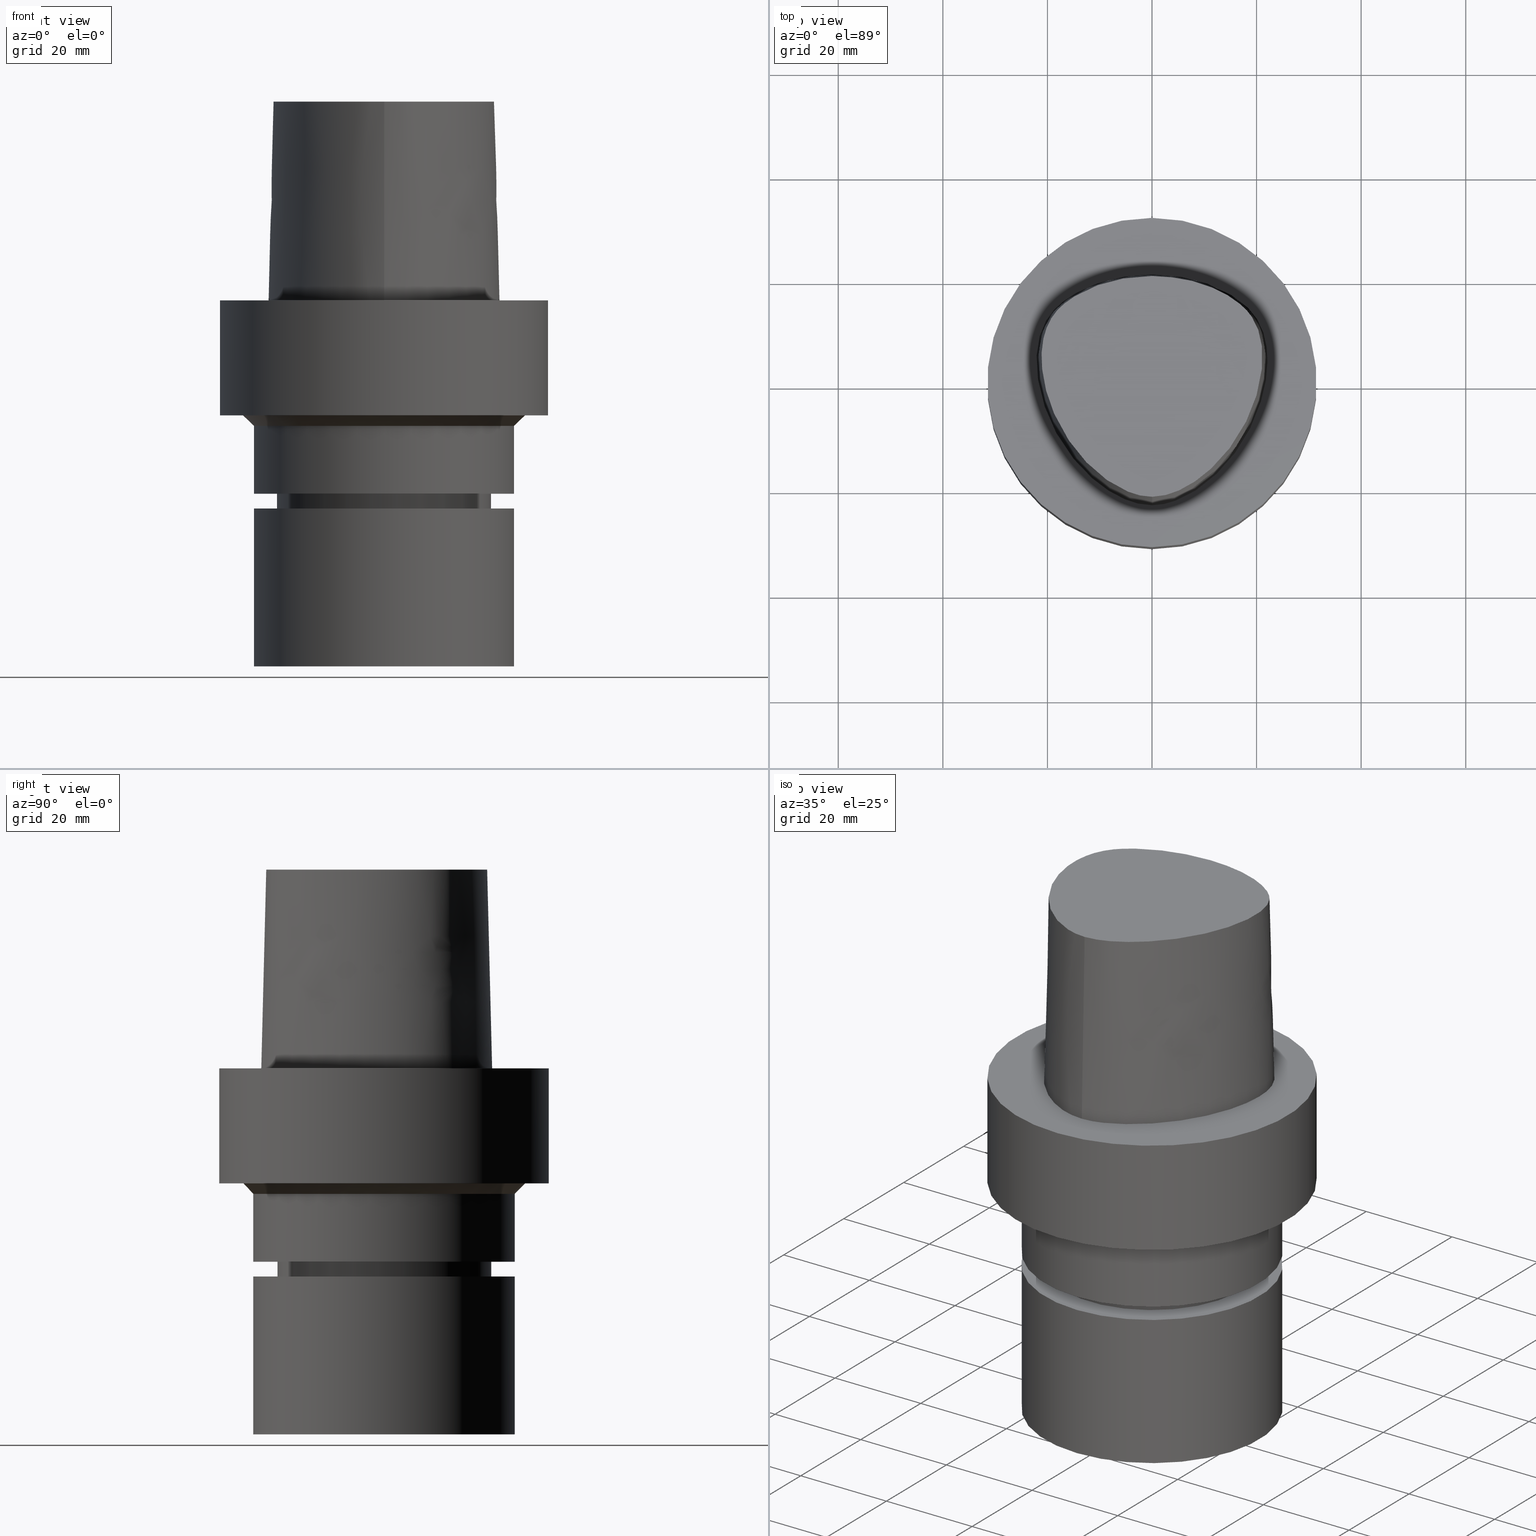
[diagram: canonical four-view strip — front | top / right | iso, engineering-drawing reading convention]
A machine part, canonical four-view strip (front | top / right | iso — engineering-drawing reading convention). The complete STEP part file that produces these views, byte-faithful:
ISO-10303-21;
HEADER;
FILE_DESCRIPTION((''),'1');
FILE_NAME('V:/90_\X2\53D65F9730C730FC30BF\X0\/00_\X2\6DE18DEF30C730FC30BF\X0\/ALL/CAPTO-BKUS\X2\52A05DE556F3\X0\_201801/C6-MEGAER/C6-MEGAER32-70NL.stp','2018-02-01T08:46:27',(''),(''),'Spatial Interop R21 SP3','Kubotek KeyCreator 2011 V10.0.2 (22737)',' ');
FILE_SCHEMA(('automotive_design'));
ENDSEC;
DATA;
#1=MECHANICAL_DESIGN_GEOMETRIC_PRESENTATION_REPRESENTATION(' ',(#14,#15,#16,#17,#18,#19,#20,#21,#22,#23,#24,#25,#26,#27,#28,#29,#30,#31,#32,#33,#34,#35,#36,#37,#38,#39,#40,#41,#42,#43,#44,#45,#46,#47,#48,#49,#50,#51,#52,#53),#10);
#2=PRODUCT_DEFINITION_CONTEXT('',#54,'design');
#3=APPLICATION_PROTOCOL_DEFINITION('INTERNATIONAL STANDARD','automotive_design',1994,#54);
#4=PRODUCT_CATEGORY_RELATIONSHIP('NONE','NONE',#55,#56);
#5=SHAPE_DEFINITION_REPRESENTATION(#57,#58);
#6=PRODUCT_DEFINITION_CONTEXT('',#59,'design');
#7=APPLICATION_PROTOCOL_DEFINITION('INTERNATIONAL STANDARD','automotive_design',1994,#59);
#8=PRODUCT_CATEGORY_RELATIONSHIP('NONE','NONE',#60,#61);
#9=SHAPE_DEFINITION_REPRESENTATION(#62,#63);
#10= (GEOMETRIC_REPRESENTATION_CONTEXT(3)GLOBAL_UNCERTAINTY_ASSIGNED_CONTEXT((#66))GLOBAL_UNIT_ASSIGNED_CONTEXT((#68,#69,#70))REPRESENTATION_CONTEXT('NONE','WORKSPACE'));
#14=STYLED_ITEM('',(#72),#73);
#15=STYLED_ITEM('',(#74),#75);
#16=STYLED_ITEM('',(#76,#77),#78);
#17=STYLED_ITEM('',(#79,#80),#81);
#18=STYLED_ITEM('',(#82,#83),#84);
#19=STYLED_ITEM('',(#85),#86);
#20=STYLED_ITEM('',(#87),#88);
#21=STYLED_ITEM('',(#89),#90);
#22=STYLED_ITEM('',(#91,#92),#93);
#23=STYLED_ITEM('',(#94),#95);
#24=STYLED_ITEM('',(#96,#97),#98);
#25=STYLED_ITEM('',(#99,#100),#101);
#26=STYLED_ITEM('',(#102),#103);
#27=STYLED_ITEM('',(#104),#105);
#28=STYLED_ITEM('',(#106,#107),#108);
#29=STYLED_ITEM('',(#109,#110),#111);
#30=STYLED_ITEM('',(#112,#113),#114);
#31=STYLED_ITEM('',(#115,#116),#117);
#32=STYLED_ITEM('',(#118,#119),#120);
#33=STYLED_ITEM('',(#121),#122);
#34=STYLED_ITEM('',(#123),#124);
#35=STYLED_ITEM('',(#125,#126),#127);
#36=STYLED_ITEM('',(#128),#129);
#37=STYLED_ITEM('',(#130),#131);
#38=STYLED_ITEM('',(#132),#133);
#39=STYLED_ITEM('',(#134,#135),#136);
#40=STYLED_ITEM('',(#137),#138);
#41=STYLED_ITEM('',(#139,#140),#141);
#42=STYLED_ITEM('',(#142),#143);
#43=STYLED_ITEM('',(#144,#145),#146);
#44=STYLED_ITEM('',(#147),#148);
#45=STYLED_ITEM('',(#149),#150);
#46=STYLED_ITEM('',(#151,#152),#153);
#47=STYLED_ITEM('',(#154),#155);
#48=STYLED_ITEM('',(#156,#157),#158);
#49=STYLED_ITEM('',(#159,#160),#161);
#50=STYLED_ITEM('',(#162,#163),#164);
#51=STYLED_ITEM('',(#165),#166);
#52=STYLED_ITEM('',(#167,#168),#169);
#53=STYLED_ITEM('',(#170),#171);
#54=APPLICATION_CONTEXT(' ');
#55=PRODUCT_CATEGORY('part','NONE');
#56=PRODUCT_RELATED_PRODUCT_CATEGORY('detail',' ',(#172));
#57=PRODUCT_DEFINITION_SHAPE('NONE','NONE',#173);
#58=ADVANCED_BREP_SHAPE_REPRESENTATION('Unnamed[1]',(#169,#174),#10);
#59=APPLICATION_CONTEXT(' ');
#60=PRODUCT_CATEGORY('part','NONE');
#61=PRODUCT_RELATED_PRODUCT_CATEGORY('detail',' ',(#175));
#62=PRODUCT_DEFINITION_SHAPE('NONE','NONE',#176);
#63=ADVANCED_BREP_SHAPE_REPRESENTATION('Unnamed[1]',(#98,#177),#10);
#66=UNCERTAINTY_MEASURE_WITH_UNIT(LENGTH_MEASURE(1.0E-006),#68,'','');
#68= (CONVERSION_BASED_UNIT('MILLIMETRE',#180)LENGTH_UNIT()NAMED_UNIT(#183));
#69= (NAMED_UNIT(#185)PLANE_ANGLE_UNIT()SI_UNIT($,.RADIAN.));
#70= (NAMED_UNIT(#185)SOLID_ANGLE_UNIT()SI_UNIT($,.STERADIAN.));
#72=PRESENTATION_STYLE_ASSIGNMENT((#191));
#73=EDGE_CURVE('Unnamed[1]',#192,#192,#193,.T.);
#74=PRESENTATION_STYLE_ASSIGNMENT((#194));
#75=EDGE_CURVE('Unnamed[1]',#195,#195,#196,.T.);
#76=PRESENTATION_STYLE_ASSIGNMENT((#197));
#77=PRESENTATION_STYLE_ASSIGNMENT((#198));
#78=ADVANCED_FACE('Unnamed[1]',(#199,#200),#201,.T.);
#79=PRESENTATION_STYLE_ASSIGNMENT((#202));
#80=PRESENTATION_STYLE_ASSIGNMENT((#203));
#81=ADVANCED_FACE('Unnamed[1]',(#204),#205,.T.);
#82=PRESENTATION_STYLE_ASSIGNMENT((#206));
#83=PRESENTATION_STYLE_ASSIGNMENT((#207));
#84=ADVANCED_FACE('Unnamed[1]',(#208,#209),#210,.T.);
#85=PRESENTATION_STYLE_ASSIGNMENT((#211));
#86=EDGE_CURVE('Unnamed[1]',#212,#213,#214,.T.);
#87=PRESENTATION_STYLE_ASSIGNMENT((#215));
#88=EDGE_CURVE('Unnamed[1]',#216,#216,#217,.T.);
#89=PRESENTATION_STYLE_ASSIGNMENT((#218));
#90=EDGE_CURVE('Unnamed[1]',#219,#219,#220,.T.);
#91=PRESENTATION_STYLE_ASSIGNMENT((#221));
#92=PRESENTATION_STYLE_ASSIGNMENT((#222));
#93=ADVANCED_FACE('Unnamed[1]',(#223),#224,.T.);
#94=PRESENTATION_STYLE_ASSIGNMENT((#225));
#95=EDGE_CURVE('Unnamed[1]',#226,#226,#227,.T.);
#96=PRESENTATION_STYLE_ASSIGNMENT((#228));
#97=PRESENTATION_STYLE_ASSIGNMENT((#229));
#98=MANIFOLD_SOLID_BREP('Unnamed[1]',#230);
#99=PRESENTATION_STYLE_ASSIGNMENT((#231));
#100=PRESENTATION_STYLE_ASSIGNMENT((#232));
#101=ADVANCED_FACE('Unnamed[1]',(#233,#234),#235,.T.);
#102=PRESENTATION_STYLE_ASSIGNMENT((#236));
#103=EDGE_CURVE('Unnamed[1]',#237,#212,#238,.T.);
#104=PRESENTATION_STYLE_ASSIGNMENT((#239));
#105=EDGE_CURVE('Unnamed[1]',#240,#213,#241,.T.);
#106=PRESENTATION_STYLE_ASSIGNMENT((#242));
#107=PRESENTATION_STYLE_ASSIGNMENT((#243));
#108=ADVANCED_FACE('Unnamed[1]',(#244,#245),#246,.T.);
#109=PRESENTATION_STYLE_ASSIGNMENT((#247));
#110=PRESENTATION_STYLE_ASSIGNMENT((#248));
#111=ADVANCED_FACE('Unnamed[1]',(#249),#250,.T.);
#112=PRESENTATION_STYLE_ASSIGNMENT((#251));
#113=PRESENTATION_STYLE_ASSIGNMENT((#252));
#114=ADVANCED_FACE('Unnamed[1]',(#253,#254),#255,.T.);
#115=PRESENTATION_STYLE_ASSIGNMENT((#256));
#116=PRESENTATION_STYLE_ASSIGNMENT((#257));
#117=ADVANCED_FACE('Unnamed[1]',(#258),#259,.T.);
#118=PRESENTATION_STYLE_ASSIGNMENT((#260));
#119=PRESENTATION_STYLE_ASSIGNMENT((#261));
#120=ADVANCED_FACE('Unnamed[1]',(#262,#263),#264,.T.);
#121=PRESENTATION_STYLE_ASSIGNMENT((#265));
#122=EDGE_CURVE('Unnamed[1]',#240,#237,#266,.T.);
#123=PRESENTATION_STYLE_ASSIGNMENT((#267));
#124=EDGE_CURVE('Unnamed[1]',#268,#268,#269,.T.);
#125=PRESENTATION_STYLE_ASSIGNMENT((#270));
#126=PRESENTATION_STYLE_ASSIGNMENT((#271));
#127=ADVANCED_FACE('Unnamed[1]',(#272),#273,.T.);
#128=PRESENTATION_STYLE_ASSIGNMENT((#274));
#129=EDGE_CURVE('Unnamed[1]',#275,#212,#276,.T.);
#130=PRESENTATION_STYLE_ASSIGNMENT((#277));
#131=EDGE_CURVE('Unnamed[1]',#278,#278,#279,.T.);
#132=PRESENTATION_STYLE_ASSIGNMENT((#280));
#133=EDGE_CURVE('Unnamed[1]',#281,#281,#282,.T.);
#134=PRESENTATION_STYLE_ASSIGNMENT((#283));
#135=PRESENTATION_STYLE_ASSIGNMENT((#284));
#136=ADVANCED_FACE('Unnamed[1]',(#285),#286,.T.);
#137=PRESENTATION_STYLE_ASSIGNMENT((#287));
#138=EDGE_CURVE('Unnamed[1]',#240,#275,#288,.T.);
#139=PRESENTATION_STYLE_ASSIGNMENT((#289));
#140=PRESENTATION_STYLE_ASSIGNMENT((#290));
#141=ADVANCED_FACE('Unnamed[1]',(#291,#292),#293,.T.);
#142=PRESENTATION_STYLE_ASSIGNMENT((#294));
#143=EDGE_CURVE('Unnamed[1]',#295,#295,#296,.T.);
#144=PRESENTATION_STYLE_ASSIGNMENT((#297));
#145=PRESENTATION_STYLE_ASSIGNMENT((#298));
#146=ADVANCED_FACE('Unnamed[1]',(#299),#300,.T.);
#147=PRESENTATION_STYLE_ASSIGNMENT((#301));
#148=EDGE_CURVE('Unnamed[1]',#302,#302,#303,.T.);
#149=PRESENTATION_STYLE_ASSIGNMENT((#304));
#150=EDGE_CURVE('Unnamed[1]',#305,#305,#306,.T.);
#151=PRESENTATION_STYLE_ASSIGNMENT((#307));
#152=PRESENTATION_STYLE_ASSIGNMENT((#308));
#153=ADVANCED_FACE('Unnamed[1]',(#309,#310),#311,.T.);
#154=PRESENTATION_STYLE_ASSIGNMENT((#312));
#155=EDGE_CURVE('Unnamed[1]',#237,#240,#313,.T.);
#156=PRESENTATION_STYLE_ASSIGNMENT((#314));
#157=PRESENTATION_STYLE_ASSIGNMENT((#315));
#158=ADVANCED_FACE('Unnamed[1]',(#316,#317),#318,.T.);
#159=PRESENTATION_STYLE_ASSIGNMENT((#319));
#160=PRESENTATION_STYLE_ASSIGNMENT((#320));
#161=ADVANCED_FACE('Unnamed[1]',(#321,#322),#323,.T.);
#162=PRESENTATION_STYLE_ASSIGNMENT((#324));
#163=PRESENTATION_STYLE_ASSIGNMENT((#325));
#164=ADVANCED_FACE('Unnamed[1]',(#326,#327),#328,.T.);
#165=PRESENTATION_STYLE_ASSIGNMENT((#329));
#166=EDGE_CURVE('Unnamed[1]',#330,#330,#331,.T.);
#167=PRESENTATION_STYLE_ASSIGNMENT((#332));
#168=PRESENTATION_STYLE_ASSIGNMENT((#333));
#169=MANIFOLD_SOLID_BREP('Unnamed[1]',#334);
#170=PRESENTATION_STYLE_ASSIGNMENT((#335));
#171=EDGE_CURVE('Unnamed[1]',#213,#275,#336,.T.);
#172=PRODUCT('Unnamed[1]','Unnamed[1]','PART-Unnamed[1]-DESC',(#337));
#173=PRODUCT_DEFINITION('NONE','NONE',#338,#2);
#174=AXIS2_PLACEMENT_3D('',#339,#340,#341);
#175=PRODUCT('Unnamed[1]','Unnamed[1]','PART-Unnamed[1]-DESC',(#342));
#176=PRODUCT_DEFINITION('NONE','NONE',#343,#6);
#177=AXIS2_PLACEMENT_3D('',#344,#345,#346);
#180=LENGTH_MEASURE_WITH_UNIT(LENGTH_MEASURE(1.0),#347);
#183=DIMENSIONAL_EXPONENTS(1.0,0.0,0.0,0.0,0.0,0.0,0.0);
#185=DIMENSIONAL_EXPONENTS(0.0,0.0,0.0,0.0,0.0,0.0,0.0);
#191=CURVE_STYLE('',#348,POSITIVE_LENGTH_MEASURE(1000.0),#349);
#192=VERTEX_POINT('',#350);
#193=CIRCLE('',#351,25.0);
#194=CURVE_STYLE('',#352,POSITIVE_LENGTH_MEASURE(1000.0),#353);
#195=VERTEX_POINT('',#354);
#196=CIRCLE('',#355,25.0);
#197=SURFACE_STYLE_USAGE(.BOTH.,#356);
#198=CURVE_STYLE('',#357,POSITIVE_LENGTH_MEASURE(1000.0),#358);
#199=FACE_BOUND('',#359,.T.);
#200=FACE_OUTER_BOUND('',#360,.T.);
#201=PLANE('',#361);
#202=SURFACE_STYLE_USAGE(.BOTH.,#362);
#203=CURVE_STYLE('',#363,POSITIVE_LENGTH_MEASURE(1000.0),#364);
#204=FACE_OUTER_BOUND('',#365,.T.);
#205=PLANE('',#366);
#206=SURFACE_STYLE_USAGE(.BOTH.,#367);
#207=CURVE_STYLE('',#368,POSITIVE_LENGTH_MEASURE(1000.0),#369);
#208=FACE_BOUND('',#370,.T.);
#209=FACE_BOUND('',#371,.T.);
#210=CYLINDRICAL_SURFACE('',#372,25.0);
#211=CURVE_STYLE('',#373,POSITIVE_LENGTH_MEASURE(1000.0),#374);
#212=VERTEX_POINT('',#375);
#213=VERTEX_POINT('',#376);
#214=B_SPLINE_CURVE_WITH_KNOTS('',3,(#377,#378,#379,#380,#381,#382,#383,#384,#385,#386,#387,#388,#389,#390,#391,#392,#393,#394),.UNSPECIFIED.,.F.,.F.,(4,1,1,1,1,1,1,1,1,2,1,1,1,1,4),(-6.6151339308743,-6.20168806019465,-5.78824218951501,-5.37479631883537,-4.96135044815572,-4.13445870679644,-3.30756696543715,-2.89412109475751,-2.48067522407786,-2.06722935339822,-1.65378348271857,-1.24033761203893,-0.826891741359287,-0.413445870679644,0.0),.UNSPECIFIED.);
#215=CURVE_STYLE('',#395,POSITIVE_LENGTH_MEASURE(1000.0),#396);
#216=VERTEX_POINT('',#397);
#217=CIRCLE('',#398,31.5);
#218=CURVE_STYLE('',#399,POSITIVE_LENGTH_MEASURE(1000.0),#400);
#219=VERTEX_POINT('',#401);
#220=CIRCLE('',#402,20.0);
#221=SURFACE_STYLE_USAGE(.BOTH.,#403);
#222=CURVE_STYLE('',#404,POSITIVE_LENGTH_MEASURE(1000.0),#405);
#223=FACE_OUTER_BOUND('',#406,.T.);
#224=B_SPLINE_SURFACE_WITH_KNOTS('',3,3,((#407,#408,#409,#410),(#411,#412,#413,#414),(#415,#416,#417,#418),(#419,#420,#421,#422),(#423,#424,#425,#426),(#427,#428,#429,#430),(#431,#432,#433,#434),(#435,#436,#437,#438),(#439,#440,#441,#442),(#443,#444,#445,#446),(#447,#448,#449,#450),(#451,#452,#453,#454),(#455,#456,#457,#458),(#459,#460,#461,#462),(#463,#464,#465,#466),(#467,#468,#469,#470),(#471,#472,#473,#474),(#475,#476,#477,#478)),.UNSPECIFIED.,.F.,.F.,.F.,(4,1,1,1,1,1,1,1,1,2,1,1,1,1,4),(4,4),(-6.6151339308743,-6.20168806019465,-5.78824218951501,-5.37479631883537,-4.96135044815572,-4.13445870679644,-3.30756696543715,-2.89412109475751,-2.48067522407786,-2.06722935339822,-1.65378348271857,-1.24033761203893,-0.826891741359287,-0.413445870679644,0.0),(-3.8,0.0),.UNSPECIFIED.);
#225=CURVE_STYLE('',#479,POSITIVE_LENGTH_MEASURE(1000.0),#480);
#226=VERTEX_POINT('',#481);
#227=CIRCLE('',#482,25.0);
#228=SURFACE_STYLE_USAGE(.BOTH.,#483);
#229=CURVE_STYLE('',#484,POSITIVE_LENGTH_MEASURE(1000.0),#485);
#230=CLOSED_SHELL('',(#146,#136,#84));
#231=SURFACE_STYLE_USAGE(.BOTH.,#486);
#232=CURVE_STYLE('',#487,POSITIVE_LENGTH_MEASURE(1000.0),#488);
#233=FACE_BOUND('',#489,.T.);
#234=FACE_BOUND('',#490,.T.);
#235=CONICAL_SURFACE('',#491,19.4499999999999,0.523598775598219);
#236=CURVE_STYLE('',#492,POSITIVE_LENGTH_MEASURE(1000.0),#493);
#237=VERTEX_POINT('',#494);
#238=LINE('',#495,#496);
#239=CURVE_STYLE('',#497,POSITIVE_LENGTH_MEASURE(1000.0),#498);
#240=VERTEX_POINT('',#499);
#241=LINE('',#500,#501);
#242=SURFACE_STYLE_USAGE(.BOTH.,#502);
#243=CURVE_STYLE('',#503,POSITIVE_LENGTH_MEASURE(1000.0),#504);
#244=FACE_BOUND('',#505,.T.);
#245=FACE_BOUND('',#506,.T.);
#246=CYLINDRICAL_SURFACE('',#507,20.4999999999961);
#247=SURFACE_STYLE_USAGE(.BOTH.,#508);
#248=CURVE_STYLE('',#509,POSITIVE_LENGTH_MEASURE(1000.0),#510);
#249=FACE_OUTER_BOUND('',#511,.T.);
#250=PLANE('',#512);
#251=SURFACE_STYLE_USAGE(.BOTH.,#513);
#252=CURVE_STYLE('',#514,POSITIVE_LENGTH_MEASURE(1000.0),#515);
#253=FACE_BOUND('',#516,.T.);
#254=FACE_BOUND('',#517,.T.);
#255=CONICAL_SURFACE('',#518,26.0,0.785398163397585);
#256=SURFACE_STYLE_USAGE(.BOTH.,#519);
#257=CURVE_STYLE('',#520,POSITIVE_LENGTH_MEASURE(1000.0),#521);
#258=FACE_OUTER_BOUND('',#522,.T.);
#259=CONICAL_SURFACE('',#523,1.0,0.0249931148600041);
#260=SURFACE_STYLE_USAGE(.BOTH.,#524);
#261=CURVE_STYLE('',#525,POSITIVE_LENGTH_MEASURE(1000.0),#526);
#262=FACE_BOUND('',#527,.T.);
#263=FACE_BOUND('',#528,.T.);
#264=CYLINDRICAL_SURFACE('',#529,20.0);
#265=CURVE_STYLE('',#530,POSITIVE_LENGTH_MEASURE(1000.0),#531);
#266=B_SPLINE_CURVE_WITH_KNOTS('',3,(#532,#533,#534,#535,#536,#537,#538,#539,#540,#541,#542,#543,#544,#545,#546,#547),.UNSPECIFIED.,.F.,.F.,(4,1,1,1,1,1,1,1,1,1,1,1,1,4),(0.0,0.447924670568964,0.9388024242536,1.50591409090711,2.07314340012323,2.72424957442464,3.2253501842849,3.80982102049476,4.34867996267067,4.85900173381144,5.37972031856977,6.03459825488646,6.61113557741484,6.61513393087395),.UNSPECIFIED.);
#267=CURVE_STYLE('',#548,POSITIVE_LENGTH_MEASURE(1000.0),#549);
#268=VERTEX_POINT('',#550);
#269=CIRCLE('',#551,20.0000000000001);
#270=SURFACE_STYLE_USAGE(.BOTH.,#552);
#271=CURVE_STYLE('',#553,POSITIVE_LENGTH_MEASURE(1000.0),#554);
#272=FACE_OUTER_BOUND('',#555,.T.);
#273=B_SPLINE_SURFACE_WITH_KNOTS('',3,3,((#556,#557,#558,#559),(#560,#561,#562,#563),(#564,#565,#566,#567),(#568,#569,#570,#571),(#572,#573,#574,#575),(#576,#577,#578,#579),(#580,#581,#582,#583),(#584,#585,#586,#587),(#588,#589,#590,#591),(#592,#593,#594,#595),(#596,#597,#598,#599),(#600,#601,#602,#603),(#604,#605,#606,#607),(#608,#609,#610,#611),(#612,#613,#614,#615),(#616,#617,#618,#619),(#620,#621,#622,#623)),.UNSPECIFIED.,.F.,.F.,.F.,(4,1,1,1,1,1,1,1,1,1,1,1,1,1,4),(4,4),(-13.2302678617486,-12.816821991069,-12.4033761203893,-11.9899302497097,-11.57648437903,-11.1630385083504,-10.9563155730106,-10.7495926376707,-10.3361467669911,-9.92270089631145,-9.09580915495216,-8.26891741359287,-7.44202567223358,-7.02857980155394,-6.6151339308743),(-3.8,0.0),.UNSPECIFIED.);
#274=CURVE_STYLE('',#624,POSITIVE_LENGTH_MEASURE(1000.0),#625);
#275=VERTEX_POINT('',#626);
#276=B_SPLINE_CURVE_WITH_KNOTS('',3,(#627,#628,#629,#630,#631,#632,#633,#634,#635,#636,#637,#638,#639,#640,#641,#642,#643),.UNSPECIFIED.,.F.,.F.,(4,1,1,1,1,1,1,1,1,1,1,1,1,1,4),(-13.2302678617486,-12.816821991069,-12.4033761203893,-11.9899302497097,-11.57648437903,-11.1630385083504,-10.9563155730106,-10.7495926376707,-10.3361467669911,-9.92270089631145,-9.09580915495216,-8.26891741359287,-7.44202567223358,-7.02857980155394,-6.6151339308743),.UNSPECIFIED.);
#277=CURVE_STYLE('',#644,POSITIVE_LENGTH_MEASURE(1000.0),#645);
#278=VERTEX_POINT('',#646);
#279=CIRCLE('',#647,31.5);
#280=CURVE_STYLE('',#648,POSITIVE_LENGTH_MEASURE(1000.0),#649);
#281=VERTEX_POINT('',#650);
#282=CIRCLE('',#651,25.0);
#283=SURFACE_STYLE_USAGE(.BOTH.,#652);
#284=CURVE_STYLE('',#653,POSITIVE_LENGTH_MEASURE(1000.0),#654);
#285=FACE_OUTER_BOUND('',#655,.T.);
#286=PLANE('',#656);
#287=CURVE_STYLE('',#657,POSITIVE_LENGTH_MEASURE(1000.0),#658);
#288=LINE('',#659,#660);
#289=SURFACE_STYLE_USAGE(.BOTH.,#661);
#290=CURVE_STYLE('',#662,POSITIVE_LENGTH_MEASURE(1000.0),#663);
#291=FACE_BOUND('',#664,.T.);
#292=FACE_BOUND('',#665,.T.);
#293=CYLINDRICAL_SURFACE('',#666,31.5);
#294=CURVE_STYLE('',#667,POSITIVE_LENGTH_MEASURE(1000.0),#668);
#295=VERTEX_POINT('',#669);
#296=CIRCLE('',#670,27.0);
#297=SURFACE_STYLE_USAGE(.BOTH.,#671);
#298=CURVE_STYLE('',#672,POSITIVE_LENGTH_MEASURE(1000.0),#673);
#299=FACE_OUTER_BOUND('',#674,.T.);
#300=PLANE('',#675);
#301=CURVE_STYLE('',#676,POSITIVE_LENGTH_MEASURE(1000.0),#677);
#302=VERTEX_POINT('',#678);
#303=CIRCLE('',#679,20.4999999999911);
#304=CURVE_STYLE('',#680,POSITIVE_LENGTH_MEASURE(1000.0),#681);
#305=VERTEX_POINT('',#682);
#306=CIRCLE('',#683,20.5000000000012);
#307=SURFACE_STYLE_USAGE(.BOTH.,#684);
#308=CURVE_STYLE('',#685,POSITIVE_LENGTH_MEASURE(1000.0),#686);
#309=FACE_BOUND('',#687,.T.);
#310=FACE_OUTER_BOUND('',#688,.T.);
#311=PLANE('',#689);
#312=CURVE_STYLE('',#690,POSITIVE_LENGTH_MEASURE(1000.0),#691);
#313=B_SPLINE_CURVE_WITH_KNOTS('',3,(#692,#693,#694,#695,#696,#697,#698,#699,#700,#701,#702,#703,#704,#705,#706,#707),.UNSPECIFIED.,.F.,.F.,(4,1,1,1,1,1,1,1,1,1,1,1,1,4),(6.61513393087476,6.99917207152274,7.48193246986995,7.96289324787093,8.45540287038584,9.10291653679981,9.67129810936083,10.1618749681153,10.6358867802489,11.1080734988593,11.6043706019633,12.09451993853,12.6985979284494,13.2302678617486),.UNSPECIFIED.);
#314=SURFACE_STYLE_USAGE(.BOTH.,#708);
#315=CURVE_STYLE('',#709,POSITIVE_LENGTH_MEASURE(1000.0),#710);
#316=FACE_BOUND('',#711,.T.);
#317=FACE_OUTER_BOUND('',#712,.T.);
#318=PLANE('',#713);
#319=SURFACE_STYLE_USAGE(.BOTH.,#714);
#320=CURVE_STYLE('',#715,POSITIVE_LENGTH_MEASURE(1000.0),#716);
#321=FACE_BOUND('',#717,.T.);
#322=FACE_BOUND('',#718,.T.);
#323=CONICAL_SURFACE('',#719,20.2500000000006,1.0471975512025);
#324=SURFACE_STYLE_USAGE(.BOTH.,#720);
#325=CURVE_STYLE('',#721,POSITIVE_LENGTH_MEASURE(1000.0),#722);
#326=FACE_BOUND('',#723,.T.);
#327=FACE_BOUND('',#724,.T.);
#328=CYLINDRICAL_SURFACE('',#725,25.0);
#329=CURVE_STYLE('',#726,POSITIVE_LENGTH_MEASURE(1000.0),#727);
#330=VERTEX_POINT('',#728);
#331=CIRCLE('',#729,18.8999999999997);
#332=SURFACE_STYLE_USAGE(.BOTH.,#730);
#333=CURVE_STYLE('',#731,POSITIVE_LENGTH_MEASURE(1000.0),#732);
#334=CLOSED_SHELL('',(#127,#93,#117,#111,#78,#141,#158,#114,#164,#153,#108,#161,#120,#101,#81));
#335=CURVE_STYLE('',#733,POSITIVE_LENGTH_MEASURE(1000.0),#734);
#336=CIRCLE('',#735,0.949936168436318);
#337=PRODUCT_CONTEXT('',#54,'mechanical');
#338=PRODUCT_DEFINITION_FORMATION_WITH_SPECIFIED_SOURCE(' ','NONE',#172,.NOT_KNOWN.);
#339=CARTESIAN_POINT('',(0.0,0.0,0.0));
#340=DIRECTION('',(0.0,0.0,1.0));
#341=DIRECTION('',(1.0,0.0,0.0));
#342=PRODUCT_CONTEXT('',#59,'mechanical');
#343=PRODUCT_DEFINITION_FORMATION_WITH_SPECIFIED_SOURCE(' ','NONE',#175,.NOT_KNOWN.);
#344=CARTESIAN_POINT('',(0.0,0.0,0.0));
#345=DIRECTION('',(0.0,0.0,1.0));
#346=DIRECTION('',(1.0,0.0,0.0));
#347= (NAMED_UNIT(#183)LENGTH_UNIT()SI_UNIT(.MILLI.,.METRE.));
#348=DRAUGHTING_PRE_DEFINED_CURVE_FONT('continuous');
#349=COLOUR_RGB('',0.0,1.0,0.0);
#350=CARTESIAN_POINT('',(2.43704713030323E-015,25.0,-39.8));
#351=AXIS2_PLACEMENT_3D('',#737,#738,#739);
#352=DRAUGHTING_PRE_DEFINED_CURVE_FONT('continuous');
#353=COLOUR_RGB('',0.0,1.0,0.0);
#354=CARTESIAN_POINT('',(4.28626379701574E-015,25.0,-70.0));
#355=AXIS2_PLACEMENT_3D('',#740,#741,#742);
#356=SURFACE_SIDE_STYLE('',(#743));
#357=DRAUGHTING_PRE_DEFINED_CURVE_FONT('continuous');
#358=COLOUR_RGB('',0.0,1.0,0.0);
#359=EDGE_LOOP('',(#744,#745,#746));
#360=EDGE_LOOP('',(#747));
#361=AXIS2_PLACEMENT_3D('',#748,#749,#750);
#362=SURFACE_SIDE_STYLE('',(#751));
#363=DRAUGHTING_PRE_DEFINED_CURVE_FONT('continuous');
#364=COLOUR_RGB('',0.0,1.0,0.0);
#365=EDGE_LOOP('',(#752));
#366=AXIS2_PLACEMENT_3D('',#753,#754,#755);
#367=SURFACE_SIDE_STYLE('',(#756));
#368=DRAUGHTING_PRE_DEFINED_CURVE_FONT('continuous');
#369=COLOUR_RGB('',0.0,1.0,0.0);
#370=EDGE_LOOP('',(#757));
#371=EDGE_LOOP('',(#758));
#372=AXIS2_PLACEMENT_3D('',#759,#760,#761);
#373=DRAUGHTING_PRE_DEFINED_CURVE_FONT('continuous');
#374=COLOUR_RGB('',0.0,1.0,0.0);
#375=CARTESIAN_POINT('',(0.04359356758149,-23.4691235068931,7.78075697532443E-032));
#376=CARTESIAN_POINT('',(-0.045171994691285,20.6766009553285,1.6755590516169E-031));
#377=CARTESIAN_POINT('',(0.04359356758149,-23.4691235068931,7.78075697532443E-032));
#378=CARTESIAN_POINT('',(-1.4714994713963,-23.4767895315797,2.46519032881566E-032));
#379=CARTESIAN_POINT('',(-4.43923476371401,-22.821149804767,-4.93038065763132E-032));
#380=CARTESIAN_POINT('',(-8.35043230079961,-20.8000751253325,-9.86076131526265E-032));
#381=CARTESIAN_POINT('',(-11.744900222602,-18.1556117874078,-1.97215226305253E-031));
#382=CARTESIAN_POINT('',(-15.6989602501314,-14.0406306929147,-1.97215226305253E-031));
#383=CARTESIAN_POINT('',(-19.5352875070682,-8.00624990770787,1.97215226305253E-031));
#384=CARTESIAN_POINT('',(-21.7205626190491,-1.16081708945282,0.0));
#385=CARTESIAN_POINT('',(-22.2486616783342,4.54965558738736,0.0));
#386=CARTESIAN_POINT('',(-21.6646421256468,9.00229539124618,0.0));
#387=CARTESIAN_POINT('',(-20.3945635471922,11.7780544971003,0.0));
#388=CARTESIAN_POINT('',(-18.5925528034471,14.1980602922581,0.0));
#389=CARTESIAN_POINT('',(-16.3226584122258,16.1777748720707,0.0));
#390=CARTESIAN_POINT('',(-12.5076407874579,18.2524201541303,9.86076131526265E-032));
#391=CARTESIAN_POINT('',(-8.46776192107786,19.679114377952,9.86076131526265E-032));
#392=CARTESIAN_POINT('',(-4.23043497193604,20.487781597334,1.97215226305253E-031));
#393=CARTESIAN_POINT('',(-1.42313094248379,20.6127745766442,1.10933564796705E-031));
#394=CARTESIAN_POINT('',(-0.045171994691285,20.6766009553285,1.6755590516169E-031));
#395=DRAUGHTING_PRE_DEFINED_CURVE_FONT('continuous');
#396=COLOUR_RGB('',0.0,1.0,0.0);
#397=CARTESIAN_POINT('',(1.34711147906212E-015,31.5,-22.0000000000006));
#398=AXIS2_PLACEMENT_3D('',#762,#763,#764);
#399=DRAUGHTING_PRE_DEFINED_CURVE_FONT('continuous');
#400=COLOUR_RGB('',0.0,1.0,0.0);
#401=CARTESIAN_POINT('',(2.6636164364881E-015,20.0,-43.5001575693925));
#402=AXIS2_PLACEMENT_3D('',#765,#766,#767);
#403=SURFACE_SIDE_STYLE('',(#768));
#404=DRAUGHTING_PRE_DEFINED_CURVE_FONT('continuous');
#405=COLOUR_RGB('',0.0,1.0,0.0);
#406=EDGE_LOOP('',(#769,#770,#771,#772));
#407=CARTESIAN_POINT('',(0.038736923393866,-22.5191997536361,38.0));
#408=CARTESIAN_POINT('',(0.04035580478973,-22.8358410047159,25.3333333333066));
#409=CARTESIAN_POINT('',(0.041974686185626,-23.1524822558133,12.6666666666934));
#410=CARTESIAN_POINT('',(0.04359356758149,-23.4691235068931,7.78075697532443E-032));
#411=CARTESIAN_POINT('',(-1.33786123484754,-22.5261650259856,38.0));
#412=CARTESIAN_POINT('',(-1.38240731367927,-22.8430399310626,25.3333333333066));
#413=CARTESIAN_POINT('',(-1.42695339249092,-23.1599147815484,12.6666666666934));
#414=CARTESIAN_POINT('',(-1.4714994713963,-23.4767895315797,2.46519032881566E-032));
#415=CARTESIAN_POINT('',(-4.08909358431842,-21.9268839879558,38.0));
#416=CARTESIAN_POINT('',(-4.20580731135515,-22.2249725500078,25.3333333333066));
#417=CARTESIAN_POINT('',(-4.32252104640446,-22.5230611651922,12.6666666666934));
#418=CARTESIAN_POINT('',(-4.43923476371401,-22.821149804767,-4.93038065763132E-032));
#419=CARTESIAN_POINT('',(-7.8333083619947,-19.9973514861616,38.0));
#420=CARTESIAN_POINT('',(-8.00568301809614,-20.2649260859405,25.3333333333066));
#421=CARTESIAN_POINT('',(-8.1780576640789,-20.532500564315,12.6666666666934));
#422=CARTESIAN_POINT('',(-8.35043230079961,-20.8000751253325,-9.86076131526265E-032));
#423=CARTESIAN_POINT('',(-11.1035071147626,-17.450554957873,38.0));
#424=CARTESIAN_POINT('',(-11.3173048160562,-17.6855739222454,25.3333333333066));
#425=CARTESIAN_POINT('',(-11.5311025116181,-17.9205928617968,12.6666666666934));
#426=CARTESIAN_POINT('',(-11.744900222602,-18.1556117874078,-1.97215226305253E-031));
#427=CARTESIAN_POINT('',(-14.9379535189057,-13.461132049697,38.0));
#428=CARTESIAN_POINT('',(-15.191622410671,-13.6542981711372,25.3333333333066));
#429=CARTESIAN_POINT('',(-15.4452913389853,-13.8474645327131,12.6666666666934));
#430=CARTESIAN_POINT('',(-15.6989602501314,-14.0406306929147,-1.97215226305253E-031));
#431=CARTESIAN_POINT('',(-18.6681263017223,-7.59391757463204,38.0));
#432=CARTESIAN_POINT('',(-18.9571800800711,-7.73136168081928,25.3333333333066));
#433=CARTESIAN_POINT('',(-19.2462337287194,-7.86880572399774,12.6666666666934));
#434=CARTESIAN_POINT('',(-19.5352875070682,-8.00624990770787,1.97215226305253E-031));
#435=CARTESIAN_POINT('',(-20.7857899858339,-0.952862819790525,38.0));
#436=CARTESIAN_POINT('',(-21.0973808305434,-1.02218087467418,25.3333333333066));
#437=CARTESIAN_POINT('',(-21.408971677436,-1.09149899580772,12.6666666666934));
#438=CARTESIAN_POINT('',(-21.7205626190491,-1.16081708945282,0.0));
#439=CARTESIAN_POINT('',(-21.2911760556836,4.5469215763113,38.0));
#440=CARTESIAN_POINT('',(-21.610337904926,4.54783292082248,25.3333333333066));
#441=CARTESIAN_POINT('',(-21.9294998290918,4.54874426225691,12.6666666666934));
#442=CARTESIAN_POINT('',(-22.2486616783342,4.54965558738736,0.0));
#443=CARTESIAN_POINT('',(-20.7345309521958,8.74909381391006,38.0));
#444=CARTESIAN_POINT('',(-21.0445680426217,8.83349432450556,25.3333333333066));
#445=CARTESIAN_POINT('',(-21.3546050933631,8.91789488065068,12.6666666666934));
#446=CARTESIAN_POINT('',(-21.6646421256468,9.00229539124618,0.0));
#447=CARTESIAN_POINT('',(-19.5531512296439,11.3174844040833,38.0));
#448=CARTESIAN_POINT('',(-19.8336219699984,11.4710077674213,25.3333333333066));
#449=CARTESIAN_POINT('',(-20.1140927680763,11.6245311337623,12.6666666666934));
#450=CARTESIAN_POINT('',(-20.3945635471922,11.7780544971003,0.0));
#451=CARTESIAN_POINT('',(-17.9100913688793,13.524027510437,38.0));
#452=CARTESIAN_POINT('',(-18.1375785458768,13.7487051053655,25.3333333333066));
#453=CARTESIAN_POINT('',(-18.365065665211,13.9733826973296,12.6666666666934));
#454=CARTESIAN_POINT('',(-18.5925528034471,14.1980602922581,0.0));
#455=CARTESIAN_POINT('',(-15.7996349656398,15.3762170634413,38.0));
#456=CARTESIAN_POINT('',(-15.9739761051783,15.6434029846179,25.3333333333066));
#457=CARTESIAN_POINT('',(-16.1483172726872,15.9105889315134,12.6666666666934));
#458=CARTESIAN_POINT('',(-16.3226584122258,16.1777748720707,0.0));
#459=CARTESIAN_POINT('',(-12.1175640002064,17.3825162484012,38.0));
#460=CARTESIAN_POINT('',(-12.2475895903055,17.6724842099619,25.3333333333066));
#461=CARTESIAN_POINT('',(-12.3776152070492,17.9624521925696,12.6666666666934));
#462=CARTESIAN_POINT('',(-12.5076407874579,18.2524201541303,9.86076131526265E-032));
#463=CARTESIAN_POINT('',(-8.21761151654222,18.7588585989994,38.0));
#464=CARTESIAN_POINT('',(-8.30099497910627,19.0656105427881,25.3333333333066));
#465=CARTESIAN_POINT('',(-8.38437843913309,19.3723624535439,12.6666666666934));
#466=CARTESIAN_POINT('',(-8.46776192107786,19.679114377952,9.86076131526265E-032));
#467=CARTESIAN_POINT('',(-4.13466093881225,19.5396850837055,38.0));
#468=CARTESIAN_POINT('',(-4.16658562115465,19.8557172636973,25.3333333333066));
#469=CARTESIAN_POINT('',(-4.19851029939059,20.1717494367229,12.6666666666934));
#470=CARTESIAN_POINT('',(-4.23043497193604,20.487781597334,1.97215226305253E-031));
#471=CARTESIAN_POINT('',(-1.37917220403684,19.6638560588908,38.0));
#472=CARTESIAN_POINT('',(-1.39382511685176,19.98016223565,25.3333333333066));
#473=CARTESIAN_POINT('',(-1.40847802945569,20.296468399885,12.6666666666934));
#474=CARTESIAN_POINT('',(-1.42313094248379,20.6127745766442,1.10933564796705E-031));
#475=CARTESIAN_POINT('',(-0.001218547003662,19.7276821925089,38.0));
#476=CARTESIAN_POINT('',(-0.015869696232855,20.043988446791,25.3333333333066));
#477=CARTESIAN_POINT('',(-0.030520845462092,20.3602947010464,12.6666666666934));
#478=CARTESIAN_POINT('',(-0.045171994691285,20.6766009553285,1.6755590516169E-031));
#479=DRAUGHTING_PRE_DEFINED_CURVE_FONT('continuous');
#480=COLOUR_RGB('',0.0,1.0,0.0);
#481=CARTESIAN_POINT('',(2.2656062267659E-015,25.0,-37.0001575694037));
#482=AXIS2_PLACEMENT_3D('',#773,#774,#775);
#483=SURFACE_SIDE_STYLE('',(#776));
#484=DRAUGHTING_PRE_DEFINED_CURVE_FONT('continuous');
#485=COLOUR_RGB('',0.0,1.0,0.0);
#486=SURFACE_SIDE_STYLE('',(#777));
#487=DRAUGHTING_PRE_DEFINED_CURVE_FONT('continuous');
#488=COLOUR_RGB('',0.0,1.0,0.0);
#489=EDGE_LOOP('',(#778));
#490=EDGE_LOOP('',(#779));
#491=AXIS2_PLACEMENT_3D('',#780,#781,#782);
#492=DRAUGHTING_PRE_DEFINED_CURVE_FONT('continuous');
#493=COLOUR_RGB('',0.0,1.0,0.0);
#494=CARTESIAN_POINT('',(0.038736923393866,-22.5191997536361,38.0));
#495=CARTESIAN_POINT('',(0.038736923393866,-22.5191997536361,38.0));
#496=VECTOR('',#783,38.0118715498723);
#497=DRAUGHTING_PRE_DEFINED_CURVE_FONT('continuous');
#498=COLOUR_RGB('',0.0,1.0,0.0);
#499=CARTESIAN_POINT('',(-0.001218547003662,19.7276821925089,38.0));
#500=CARTESIAN_POINT('',(-0.001218547003662,19.7276821925089,38.0));
#501=VECTOR('',#784,38.0118715498723);
#502=SURFACE_SIDE_STYLE('',(#785));
#503=DRAUGHTING_PRE_DEFINED_CURVE_FONT('continuous');
#504=COLOUR_RGB('',0.0,1.0,0.0);
#505=EDGE_LOOP('',(#786));
#506=EDGE_LOOP('',(#787));
#507=AXIS2_PLACEMENT_3D('',#788,#789,#790);
#508=SURFACE_SIDE_STYLE('',(#791));
#509=DRAUGHTING_PRE_DEFINED_CURVE_FONT('continuous');
#510=COLOUR_RGB('',0.0,1.0,0.0);
#511=EDGE_LOOP('',(#792,#793));
#512=AXIS2_PLACEMENT_3D('',#794,#795,#796);
#513=SURFACE_SIDE_STYLE('',(#797));
#514=DRAUGHTING_PRE_DEFINED_CURVE_FONT('continuous');
#515=COLOUR_RGB('',0.0,1.0,0.0);
#516=EDGE_LOOP('',(#798));
#517=EDGE_LOOP('',(#799));
#518=AXIS2_PLACEMENT_3D('',#800,#801,#802);
#519=SURFACE_SIDE_STYLE('',(#803));
#520=DRAUGHTING_PRE_DEFINED_CURVE_FONT('continuous');
#521=COLOUR_RGB('',0.0,1.0,0.0);
#522=EDGE_LOOP('',(#804,#805,#806));
#523=AXIS2_PLACEMENT_3D('',#807,#808,#809);
#524=SURFACE_SIDE_STYLE('',(#810));
#525=DRAUGHTING_PRE_DEFINED_CURVE_FONT('continuous');
#526=COLOUR_RGB('',0.0,1.0,0.0);
#527=EDGE_LOOP('',(#811));
#528=EDGE_LOOP('',(#812));
#529=AXIS2_PLACEMENT_3D('',#813,#814,#815);
#530=DRAUGHTING_PRE_DEFINED_CURVE_FONT('continuous');
#531=COLOUR_RGB('',0.0,1.0,0.0);
#532=CARTESIAN_POINT('',(-0.001218547003662,19.7276821925089,38.0));
#533=CARTESIAN_POINT('',(-1.49408492138443,19.6585333605309,38.0));
#534=CARTESIAN_POINT('',(-4.62297391420352,19.513604770166,38.0));
#535=CARTESIAN_POINT('',(-9.56160616752212,18.4291575730197,38.0));
#536=CARTESIAN_POINT('',(-14.5427684976927,16.2697452580488,38.0));
#537=CARTESIAN_POINT('',(-19.4315563551602,12.5302108980807,38.0));
#538=CARTESIAN_POINT('',(-21.306358833612,6.76352894547076,38.0));
#539=CARTESIAN_POINT('',(-21.0724946936277,0.957075236984038,38.0));
#540=CARTESIAN_POINT('',(-19.7876470880144,-4.34628503581652,38.0));
#541=CARTESIAN_POINT('',(-17.5396999600095,-9.33314444653089,38.0));
#542=CARTESIAN_POINT('',(-14.645447733857,-13.7185760345629,38.0));
#543=CARTESIAN_POINT('',(-10.7996726536643,-17.856257282137,38.0));
#544=CARTESIAN_POINT('',(-6.00479510196376,-21.2687382067675,38.0));
#545=CARTESIAN_POINT('',(-1.90747171908525,-22.5250621415864,38.0));
#546=CARTESIAN_POINT('',(0.025424107066464,-22.5192678176378,38.0));
#547=CARTESIAN_POINT('',(0.038736923394311,-22.519199753636,38.0));
#548=DRAUGHTING_PRE_DEFINED_CURVE_FONT('continuous');
#549=COLOUR_RGB('',0.0,1.0,0.0);
#550=CARTESIAN_POINT('',(3.4960447812249E-015,20.0000000000001,-57.0947441116734));
#551=AXIS2_PLACEMENT_3D('',#816,#817,#818);
#552=SURFACE_SIDE_STYLE('',(#819));
#553=DRAUGHTING_PRE_DEFINED_CURVE_FONT('continuous');
#554=COLOUR_RGB('',0.0,1.0,0.0);
#555=EDGE_LOOP('',(#820,#821,#822,#823));
#556=CARTESIAN_POINT('',(-0.001218367817519,19.7276822012873,38.0));
#557=CARTESIAN_POINT('',(0.014082083248157,20.0439577123075,25.3333333333066));
#558=CARTESIAN_POINT('',(0.029382534313671,20.3602332232908,12.6666666666934));
#559=CARTESIAN_POINT('',(0.044682985379347,20.6765087343109,1.61778115328528E-031));
#560=CARTESIAN_POINT('',(1.37788651195108,19.6609652834875,38.0));
#561=CARTESIAN_POINT('',(1.3931885827258,19.9772407169847,25.3333333333066));
#562=CARTESIAN_POINT('',(1.40849065356095,20.2935162254648,12.6666666666934));
#563=CARTESIAN_POINT('',(1.42379272427753,20.6097915814392,8.62816615085482E-032));
#564=CARTESIAN_POINT('',(4.135446440878,19.5347778787784,38.0));
#565=CARTESIAN_POINT('',(4.16466278851883,19.8511031866125,25.3333333333066));
#566=CARTESIAN_POINT('',(4.1938791526746,20.1674284644204,12.6666666666934));
#567=CARTESIAN_POINT('',(4.2230955003445,20.4837538303966,1.4791141972894E-031));
#568=CARTESIAN_POINT('',(8.213607363795,18.7706026638736,38.0));
#569=CARTESIAN_POINT('',(8.29980745008421,19.0767495109635,25.3333333333066));
#570=CARTESIAN_POINT('',(8.38600751285747,19.3828964329996,12.6666666666934));
#571=CARTESIAN_POINT('',(8.47220762821777,19.6890432607088,9.86076131526265E-032));
#572=CARTESIAN_POINT('',(12.1316338645671,17.3698624840857,38.0));
#573=CARTESIAN_POINT('',(12.2591308270381,17.6610739397708,25.3333333333066));
#574=CARTESIAN_POINT('',(12.3866278083543,17.9522853923553,12.6666666666934));
#575=CARTESIAN_POINT('',(12.5141247708253,18.2434968480404,0.0));
#576=CARTESIAN_POINT('',(15.7706546153679,15.3789501349612,38.0));
#577=CARTESIAN_POINT('',(15.9483905900895,15.6437731794811,25.3333333333066));
#578=CARTESIAN_POINT('',(16.1261265513272,15.9085961736944,12.6666666666934));
#579=CARTESIAN_POINT('',(16.3038624872874,16.1734192182143,1.97215226305253E-031));
#580=CARTESIAN_POINT('',(18.4265894256284,13.0570022172893,38.0));
#581=CARTESIAN_POINT('',(18.6659567517146,13.2725589420689,25.3333333333066));
#582=CARTESIAN_POINT('',(18.9053240921419,13.4881156488541,12.6666666666934));
#583=CARTESIAN_POINT('',(19.1446913988473,13.7036723639434,-1.97215226305253E-031));
#584=CARTESIAN_POINT('',(19.8679958653038,10.6923771981998,38.0));
#585=CARTESIAN_POINT('',(20.1559937048299,10.8287388264873,25.3333333333066));
#586=CARTESIAN_POINT('',(20.4439915656177,10.965100461641,12.6666666666934));
#587=CARTESIAN_POINT('',(20.7319894342149,11.1014620996188,0.0));
#588=CARTESIAN_POINT('',(20.8470867582337,8.07149548576131,38.0));
#589=CARTESIAN_POINT('',(21.1591164072431,8.14132775555392,25.3333333333066));
#590=CARTESIAN_POINT('',(21.4711459821861,8.21116003697855,12.6666666666934));
#591=CARTESIAN_POINT('',(21.7831756505763,8.28099229708081,-1.97215226305253E-031));
#592=CARTESIAN_POINT('',(21.2693244256982,4.61157245650171,38.0));
#593=CARTESIAN_POINT('',(21.5881576801997,4.6105997689982,25.3333333333066));
#594=CARTESIAN_POINT('',(21.9069908544037,4.60962709346857,12.6666666666934));
#595=CARTESIAN_POINT('',(22.2258240701438,4.60865440596506,0.0));
#596=CARTESIAN_POINT('',(20.8071610855575,-0.912828649855193,38.0));
#597=CARTESIAN_POINT('',(21.119311671178,-0.979640884839481,25.3333333333066));
#598=CARTESIAN_POINT('',(21.4314624224461,-1.04645306732201,12.6666666666934));
#599=CARTESIAN_POINT('',(21.7436130080666,-1.11326526354485,0.0));
#600=CARTESIAN_POINT('',(18.6841935581315,-7.54428794252837,38.0));
#601=CARTESIAN_POINT('',(18.9734452551861,-7.6809665891091,25.3333333333066));
#602=CARTESIAN_POINT('',(19.2626970689956,-7.81764505382656,12.6666666666934));
#603=CARTESIAN_POINT('',(19.5519487660502,-7.95432366164584,0.0));
#604=CARTESIAN_POINT('',(14.2175552814,-14.5971504342323,38.0));
#605=CARTESIAN_POINT('',(14.4641757465198,-14.8010930946929,25.3333333333066));
#606=CARTESIAN_POINT('',(14.710796247264,-15.0050359737917,12.6666666666934));
#607=CARTESIAN_POINT('',(14.9574167123838,-15.2089785567293,0.0));
#608=CARTESIAN_POINT('',(9.0844808732933,-19.3179298129689,38.0));
#609=CARTESIAN_POINT('',(9.27912152349017,-19.572866915557,25.3333333333066));
#610=CARTESIAN_POINT('',(9.47376218971294,-19.827804295621,12.6666666666934));
#611=CARTESIAN_POINT('',(9.66840283021945,-20.0827414369705,-9.86076131526265E-032));
#612=CARTESIAN_POINT('',(4.17112919194182,-21.8987568152736,38.0));
#613=CARTESIAN_POINT('',(4.28618163483998,-22.1973837173649,25.3333333333066));
#614=CARTESIAN_POINT('',(4.40123406239433,-22.4960105163661,12.6666666666934));
#615=CARTESIAN_POINT('',(4.51628650521788,-22.7946374572188,-9.86076131526265E-032));
#616=CARTESIAN_POINT('',(1.41533654381097,-22.5120888467812,38.0));
#617=CARTESIAN_POINT('',(1.46311520162011,-22.8284916374445,25.3333333333066));
#618=CARTESIAN_POINT('',(1.51089385942236,-23.144894486341,12.6666666666934));
#619=CARTESIAN_POINT('',(1.55867251738073,-23.4612972770043,-1.23259516440783E-032));
#620=CARTESIAN_POINT('',(0.038736923393866,-22.5191997536361,38.0));
#621=CARTESIAN_POINT('',(0.04035580478973,-22.8358410047159,25.3333333333066));
#622=CARTESIAN_POINT('',(0.041974686185626,-23.1524822558133,12.6666666666934));
#623=CARTESIAN_POINT('',(0.04359356758149,-23.4691235068931,7.78075697532443E-032));
#624=DRAUGHTING_PRE_DEFINED_CURVE_FONT('continuous');
#625=COLOUR_RGB('',0.0,1.0,0.0);
#626=CARTESIAN_POINT('',(0.044682985379347,20.6765087343109,1.61778115328528E-031));
#627=CARTESIAN_POINT('',(0.044682985379347,20.6765087343109,1.61778115328528E-031));
#628=CARTESIAN_POINT('',(1.42379272427753,20.6097915814392,8.62816615085482E-032));
#629=CARTESIAN_POINT('',(4.2230955003445,20.4837538303966,1.4791141972894E-031));
#630=CARTESIAN_POINT('',(8.47220762821777,19.6890432607088,9.86076131526265E-032));
#631=CARTESIAN_POINT('',(12.5141247708253,18.2434968480404,0.0));
#632=CARTESIAN_POINT('',(16.3038624872874,16.1734192182143,1.97215226305253E-031));
#633=CARTESIAN_POINT('',(19.1446913988473,13.7036723639434,-1.97215226305253E-031));
#634=CARTESIAN_POINT('',(20.7319894342149,11.1014620996188,0.0));
#635=CARTESIAN_POINT('',(21.7831756505763,8.28099229708081,-1.97215226305253E-031));
#636=CARTESIAN_POINT('',(22.2258240701438,4.60865440596506,0.0));
#637=CARTESIAN_POINT('',(21.7436130080666,-1.11326526354485,0.0));
#638=CARTESIAN_POINT('',(19.5519487660502,-7.95432366164584,0.0));
#639=CARTESIAN_POINT('',(14.9574167123838,-15.2089785567293,0.0));
#640=CARTESIAN_POINT('',(9.66840283021945,-20.0827414369705,-9.86076131526265E-032));
#641=CARTESIAN_POINT('',(4.51628650521788,-22.7946374572188,-9.86076131526265E-032));
#642=CARTESIAN_POINT('',(1.55867251738073,-23.4612972770043,-1.23259516440783E-032));
#643=CARTESIAN_POINT('',(0.04359356758149,-23.4691235068931,7.78075697532443E-032));
#644=DRAUGHTING_PRE_DEFINED_CURVE_FONT('continuous');
#645=COLOUR_RGB('',0.0,1.0,0.0);
#646=CARTESIAN_POINT('',(-3.88267476788467E-031,31.5,3.85763741731416E-015));
#647=AXIS2_PLACEMENT_3D('',#824,#825,#826);
#648=DRAUGHTING_PRE_DEFINED_CURVE_FONT('continuous');
#649=COLOUR_RGB('',0.0,1.0,0.0);
#650=CARTESIAN_POINT('',(1.46957615897682E-015,25.0,-24.0));
#651=AXIS2_PLACEMENT_3D('',#827,#828,#829);
#652=SURFACE_SIDE_STYLE('',(#830));
#653=DRAUGHTING_PRE_DEFINED_CURVE_FONT('continuous');
#654=COLOUR_RGB('',0.0,1.0,0.0);
#655=EDGE_LOOP('',(#831));
#656=AXIS2_PLACEMENT_3D('',#832,#833,#834);
#657=DRAUGHTING_PRE_DEFINED_CURVE_FONT('continuous');
#658=COLOUR_RGB('',0.0,1.0,0.0);
#659=CARTESIAN_POINT('',(-0.001218547003662,19.7276821925089,38.0));
#660=VECTOR('',#835,38.0118715503078);
#661=SURFACE_SIDE_STYLE('',(#836));
#662=DRAUGHTING_PRE_DEFINED_CURVE_FONT('continuous');
#663=COLOUR_RGB('',0.0,1.0,0.0);
#664=EDGE_LOOP('',(#837));
#665=EDGE_LOOP('',(#838));
#666=AXIS2_PLACEMENT_3D('',#839,#840,#841);
#667=DRAUGHTING_PRE_DEFINED_CURVE_FONT('continuous');
#668=COLOUR_RGB('',0.0,1.0,0.0);
#669=CARTESIAN_POINT('',(1.34711147906212E-015,27.0,-22.0000000000005));
#670=AXIS2_PLACEMENT_3D('',#842,#843,#844);
#671=SURFACE_SIDE_STYLE('',(#845));
#672=DRAUGHTING_PRE_DEFINED_CURVE_FONT('continuous');
#673=COLOUR_RGB('',0.0,1.0,0.0);
#674=EDGE_LOOP('',(#846));
#675=AXIS2_PLACEMENT_3D('',#847,#848,#849);
#676=DRAUGHTING_PRE_DEFINED_CURVE_FONT('continuous');
#677=COLOUR_RGB('',0.0,1.0,0.0);
#678=CARTESIAN_POINT('',(2.26560622676593E-015,20.4999999999911,-37.0001575694042));
#679=AXIS2_PLACEMENT_3D('',#850,#851,#852);
#680=DRAUGHTING_PRE_DEFINED_CURVE_FONT('continuous');
#681=COLOUR_RGB('',0.0,1.0,0.0);
#682=CARTESIAN_POINT('',(2.64594018250956E-015,20.5000000000012,-43.211482434801));
#683=AXIS2_PLACEMENT_3D('',#853,#854,#855);
#684=SURFACE_SIDE_STYLE('',(#856));
#685=DRAUGHTING_PRE_DEFINED_CURVE_FONT('continuous');
#686=COLOUR_RGB('',0.0,1.0,0.0);
#687=EDGE_LOOP('',(#857));
#688=EDGE_LOOP('',(#858));
#689=AXIS2_PLACEMENT_3D('',#859,#860,#861);
#690=DRAUGHTING_PRE_DEFINED_CURVE_FONT('continuous');
#691=COLOUR_RGB('',0.0,1.0,0.0);
#692=CARTESIAN_POINT('',(0.038736923394311,-22.519199753636,38.0));
#693=CARTESIAN_POINT('',(1.31742058183662,-22.512662269405,38.0));
#694=CARTESIAN_POINT('',(4.2093773447498,-21.9116226439989,38.0));
#695=CARTESIAN_POINT('',(8.20895504542113,-19.7798683845067,38.0));
#696=CARTESIAN_POINT('',(11.9784633234593,-16.681663904162,38.0));
#697=CARTESIAN_POINT('',(15.5308821579362,-12.5807487594113,38.0));
#698=CARTESIAN_POINT('',(18.4566248438667,-7.64932246015528,38.0));
#699=CARTESIAN_POINT('',(20.4036090752029,-2.27012499825289,38.0));
#700=CARTESIAN_POINT('',(21.2357187429189,2.79891401173156,38.0));
#701=CARTESIAN_POINT('',(21.0811206267748,7.62543090736657,38.0));
#702=CARTESIAN_POINT('',(19.3383577336563,12.2772250726194,38.0));
#703=CARTESIAN_POINT('',(15.5796322014404,15.5799672120682,38.0));
#704=CARTESIAN_POINT('',(10.8392956074438,17.9834601687347,38.0));
#705=CARTESIAN_POINT('',(5.56068045850571,19.4586143858472,38.0));
#706=CARTESIAN_POINT('',(1.77223893711014,19.6418877095654,38.0));
#707=CARTESIAN_POINT('',(-0.001218367817519,19.7276822012873,38.0));
#708=SURFACE_SIDE_STYLE('',(#862));
#709=DRAUGHTING_PRE_DEFINED_CURVE_FONT('continuous');
#710=COLOUR_RGB('',0.0,1.0,0.0);
#711=EDGE_LOOP('',(#863));
#712=EDGE_LOOP('',(#864));
#713=AXIS2_PLACEMENT_3D('',#865,#866,#867);
#714=SURFACE_SIDE_STYLE('',(#868));
#715=DRAUGHTING_PRE_DEFINED_CURVE_FONT('continuous');
#716=COLOUR_RGB('',0.0,1.0,0.0);
#717=EDGE_LOOP('',(#869));
#718=EDGE_LOOP('',(#870));
#719=AXIS2_PLACEMENT_3D('',#871,#872,#873);
#720=SURFACE_SIDE_STYLE('',(#874));
#721=DRAUGHTING_PRE_DEFINED_CURVE_FONT('continuous');
#722=COLOUR_RGB('',0.0,1.0,0.0);
#723=EDGE_LOOP('',(#875));
#724=EDGE_LOOP('',(#876));
#725=AXIS2_PLACEMENT_3D('',#877,#878,#879);
#726=DRAUGHTING_PRE_DEFINED_CURVE_FONT('continuous');
#727=COLOUR_RGB('',0.0,1.0,0.0);
#728=CARTESIAN_POINT('',(3.6127080574847E-015,18.8999999999997,-59.0000000000001));
#729=AXIS2_PLACEMENT_3D('',#880,#881,#882);
#730=SURFACE_SIDE_STYLE('',(#883));
#731=DRAUGHTING_PRE_DEFINED_CURVE_FONT('continuous');
#732=COLOUR_RGB('',0.0,1.0,0.0);
#733=DRAUGHTING_PRE_DEFINED_CURVE_FONT('continuous');
#734=COLOUR_RGB('',0.0,1.0,0.0);
#735=AXIS2_PLACEMENT_3D('',#884,#885,#886);
#737=CARTESIAN_POINT('',(2.43704713030323E-015,4.87409426060646E-015,-39.8));
#738=DIRECTION('',(6.12323399573677E-017,1.22464679914735E-016,-1.0));
#739=DIRECTION('',(-1.23259516440783E-032,1.0,1.22464679914735E-016));
#740=CARTESIAN_POINT('',(4.28626379701574E-015,8.57252759403147E-015,-70.0));
#741=DIRECTION('',(6.12323399573677E-017,1.22464679914735E-016,-1.0));
#742=DIRECTION('',(-1.23259516440783E-032,1.0,1.22464679914735E-016));
#743=SURFACE_STYLE_FILL_AREA(#887);
#744=ORIENTED_EDGE('',*,*,#129,.T.);
#745=ORIENTED_EDGE('',*,*,#86,.T.);
#746=ORIENTED_EDGE('',*,*,#171,.T.);
#747=ORIENTED_EDGE('',*,*,#131,.F.);
#748=CARTESIAN_POINT('',(-1.94133738394233E-031,15.75,1.92881870865708E-015));
#749=DIRECTION('',(-6.12323399573677E-017,-1.22464679914735E-016,1.0));
#750=DIRECTION('',(1.23259516440783E-032,-1.0,-1.22464679914735E-016));
#751=SURFACE_STYLE_FILL_AREA(#888);
#752=ORIENTED_EDGE('',*,*,#166,.T.);
#753=CARTESIAN_POINT('',(3.61270805748469E-015,9.44999999999986,-59.0));
#754=DIRECTION('',(6.12323399573677E-017,-1.41635797427753E-014,-1.0));
#755=DIRECTION('',(8.62441977092136E-031,1.0,-1.41635797427753E-014));
#756=SURFACE_STYLE_FILL_AREA(#889);
#757=ORIENTED_EDGE('',*,*,#75,.F.);
#758=ORIENTED_EDGE('',*,*,#73,.T.);
#759=CARTESIAN_POINT('',(3.36165546365948E-015,6.72331092731897E-015,-54.9));
#760=DIRECTION('',(6.12323399573677E-017,1.22464679914735E-016,-1.0));
#761=DIRECTION('',(-1.23259516440783E-032,1.0,1.22464679914735E-016));
#762=CARTESIAN_POINT('',(1.34711147906212E-015,2.69422295812425E-015,-22.0000000000006));
#763=DIRECTION('',(6.12323399573677E-017,1.22464679914735E-016,-1.0));
#764=DIRECTION('',(-1.23259516440783E-032,1.0,1.22464679914735E-016));
#765=CARTESIAN_POINT('',(2.6636164364881E-015,5.32723287297621E-015,-43.5001575693925));
#766=DIRECTION('',(6.12323399573677E-017,1.22464679914735E-016,-1.0));
#767=DIRECTION('',(-1.23259516440783E-032,1.0,1.22464679914735E-016));
#768=SURFACE_STYLE_FILL_AREA(#890);
#769=ORIENTED_EDGE('',*,*,#86,.F.);
#770=ORIENTED_EDGE('',*,*,#103,.F.);
#771=ORIENTED_EDGE('',*,*,#122,.F.);
#772=ORIENTED_EDGE('',*,*,#105,.T.);
#773=CARTESIAN_POINT('',(2.2656062267659E-015,4.53121245353179E-015,-37.0001575694037));
#774=DIRECTION('',(6.12323399573677E-017,1.22464679914735E-016,-1.0));
#775=DIRECTION('',(-1.23259516440783E-032,1.0,1.22464679914735E-016));
#776=SURFACE_STYLE_FILL_AREA(#891);
#777=SURFACE_STYLE_FILL_AREA(#892);
#778=ORIENTED_EDGE('',*,*,#166,.F.);
#779=ORIENTED_EDGE('',*,*,#124,.T.);
#780=CARTESIAN_POINT('',(3.5543764193548E-015,7.1087528387096E-015,-58.0473720558367));
#781=DIRECTION('',(-6.12323399573677E-017,-1.22464679914735E-016,1.0));
#782=DIRECTION('',(-1.23259516440783E-032,1.0,1.22464679914735E-016));
#783=DIRECTION('',(0.000127766510556,-0.024990186342461,-0.999687688361864));
#784=DIRECTION('',(-0.001156308434589,0.02496374748543,-0.999687688361864));
#785=SURFACE_STYLE_FILL_AREA(#893);
#786=ORIENTED_EDGE('',*,*,#150,.F.);
#787=ORIENTED_EDGE('',*,*,#148,.T.);
#788=CARTESIAN_POINT('',(2.45577320463774E-015,4.91154640927548E-015,-40.1058200021026));
#789=DIRECTION('',(6.12323399573677E-017,1.22464679914735E-016,-1.0));
#790=DIRECTION('',(-1.23259516440783E-032,1.0,1.22464679914735E-016));
#791=SURFACE_STYLE_FILL_AREA(#894);
#792=ORIENTED_EDGE('',*,*,#122,.T.);
#793=ORIENTED_EDGE('',*,*,#155,.T.);
#794=CARTESIAN_POINT('',(0.008647668684817,1.77491953635526,38.0));
#795=DIRECTION('',(-0.0,2.95577857036584E-049,1.0));
#796=DIRECTION('',(1.0,0.0,0.0));
#797=SURFACE_STYLE_FILL_AREA(#895);
#798=ORIENTED_EDGE('',*,*,#133,.F.);
#799=ORIENTED_EDGE('',*,*,#143,.T.);
#800=CARTESIAN_POINT('',(1.40834381901947E-015,2.81668763803894E-015,-23.0000000000003));
#801=DIRECTION('',(-6.12323399573677E-017,-1.22464679914735E-016,1.0));
#802=DIRECTION('',(-1.23259516440783E-032,1.0,1.22464679914735E-016));
#803=SURFACE_STYLE_FILL_AREA(#896);
#804=ORIENTED_EDGE('',*,*,#171,.F.);
#805=ORIENTED_EDGE('',*,*,#105,.F.);
#806=ORIENTED_EDGE('',*,*,#138,.T.);
#807=CARTESIAN_POINT('',(-0.001218547003662,19.7276821925089,-2.00268782779425));
#808=DIRECTION('',(2.1678647975542E-051,-3.42380273908985E-049,-1.0));
#809=DIRECTION('',(-0.046269895968506,0.99892897481606,-3.42113882891801E-049));
#810=SURFACE_STYLE_FILL_AREA(#897);
#811=ORIENTED_EDGE('',*,*,#124,.F.);
#812=ORIENTED_EDGE('',*,*,#90,.T.);
#813=CARTESIAN_POINT('',(3.0798306088565E-015,6.159661217713E-015,-50.297450840533));
#814=DIRECTION('',(6.12323399573677E-017,1.22464679914735E-016,-1.0));
#815=DIRECTION('',(-1.23259516440783E-032,1.0,1.22464679914735E-016));
#816=CARTESIAN_POINT('',(3.4960447812249E-015,6.9920895624498E-015,-57.0947441116734));
#817=DIRECTION('',(6.12323399573677E-017,1.22464679914735E-016,-1.0));
#818=DIRECTION('',(-1.23259516440783E-032,1.0,1.22464679914735E-016));
#819=SURFACE_STYLE_FILL_AREA(#898);
#820=ORIENTED_EDGE('',*,*,#129,.F.);
#821=ORIENTED_EDGE('',*,*,#138,.F.);
#822=ORIENTED_EDGE('',*,*,#155,.F.);
#823=ORIENTED_EDGE('',*,*,#103,.T.);
#824=CARTESIAN_POINT('',(0.0,0.0,0.0));
#825=DIRECTION('',(6.12323399573677E-017,1.22464679914735E-016,-1.0));
#826=DIRECTION('',(-1.23259516440783E-032,1.0,1.22464679914735E-016));
#827=CARTESIAN_POINT('',(1.46957615897682E-015,2.93915231795365E-015,-24.0));
#828=DIRECTION('',(6.12323399573677E-017,1.22464679914735E-016,-1.0));
#829=DIRECTION('',(-1.23259516440783E-032,1.0,1.22464679914735E-016));
#830=SURFACE_STYLE_FILL_AREA(#899);
#831=ORIENTED_EDGE('',*,*,#73,.F.);
#832=CARTESIAN_POINT('',(2.43704713030323E-015,12.5,-39.8));
#833=DIRECTION('',(-6.12323399573677E-017,-1.22464679914735E-016,1.0));
#834=DIRECTION('',(1.23259516440783E-032,-1.0,-1.22464679914735E-016));
#835=DIRECTION('',(0.001207557810519,0.024961321374199,-0.999687688350411));
#836=SURFACE_STYLE_FILL_AREA(#900);
#837=ORIENTED_EDGE('',*,*,#88,.F.);
#838=ORIENTED_EDGE('',*,*,#131,.T.);
#839=CARTESIAN_POINT('',(6.73555739531062E-016,1.34711147906212E-015,-11.0000000000003));
#840=DIRECTION('',(6.12323399573677E-017,1.22464679914735E-016,-1.0));
#841=DIRECTION('',(-1.23259516440783E-032,1.0,1.22464679914735E-016));
#842=CARTESIAN_POINT('',(1.34711147906212E-015,2.69422295812424E-015,-22.0000000000005));
#843=DIRECTION('',(6.12323399573677E-017,1.22464679914735E-016,-1.0));
#844=DIRECTION('',(-1.23259516440783E-032,1.0,1.22464679914735E-016));
#845=SURFACE_STYLE_FILL_AREA(#901);
#846=ORIENTED_EDGE('',*,*,#75,.T.);
#847=CARTESIAN_POINT('',(4.28626379701574E-015,12.5,-70.0));
#848=DIRECTION('',(6.12323399573677E-017,1.22464679914735E-016,-1.0));
#849=DIRECTION('',(-1.23259516440783E-032,1.0,1.22464679914735E-016));
#850=CARTESIAN_POINT('',(2.26560622676593E-015,4.53121245353186E-015,-37.0001575694042));
#851=DIRECTION('',(6.12323399573677E-017,1.22464679914735E-016,-1.0));
#852=DIRECTION('',(-1.23259516440783E-032,1.0,1.22464679914735E-016));
#853=CARTESIAN_POINT('',(2.64594018250956E-015,5.29188036501911E-015,-43.211482434801));
#854=DIRECTION('',(6.12323399573677E-017,1.22464679914735E-016,-1.0));
#855=DIRECTION('',(-1.23259516440783E-032,1.0,1.22464679914735E-016));
#856=SURFACE_STYLE_FILL_AREA(#902);
#857=ORIENTED_EDGE('',*,*,#148,.F.);
#858=ORIENTED_EDGE('',*,*,#95,.T.);
#859=CARTESIAN_POINT('',(2.26560622676591E-015,22.7499999999955,-37.000157569404));
#860=DIRECTION('',(6.12323399573677E-017,1.12230318544065E-013,-1.0));
#861=DIRECTION('',(-6.87695217134461E-030,1.0,1.12230318544065E-013));
#862=SURFACE_STYLE_FILL_AREA(#903);
#863=ORIENTED_EDGE('',*,*,#143,.F.);
#864=ORIENTED_EDGE('',*,*,#88,.T.);
#865=CARTESIAN_POINT('',(1.34711147906212E-015,29.25,-22.0000000000006));
#866=DIRECTION('',(6.12323399573677E-017,-6.1934707490639E-015,-1.0));
#867=DIRECTION('',(3.74413553691924E-031,1.0,-6.1934707490639E-015));
#868=SURFACE_STYLE_FILL_AREA(#904);
#869=ORIENTED_EDGE('',*,*,#90,.F.);
#870=ORIENTED_EDGE('',*,*,#150,.T.);
#871=CARTESIAN_POINT('',(2.65477830949883E-015,5.30955661899766E-015,-43.3558200020968));
#872=DIRECTION('',(-6.12323399573677E-017,-1.22464679914735E-016,1.0));
#873=DIRECTION('',(-1.23259516440783E-032,1.0,1.22464679914735E-016));
#874=SURFACE_STYLE_FILL_AREA(#905);
#875=ORIENTED_EDGE('',*,*,#95,.F.);
#876=ORIENTED_EDGE('',*,*,#133,.T.);
#877=CARTESIAN_POINT('',(1.86759119287136E-015,3.73518238574272E-015,-30.5000787847018));
#878=DIRECTION('',(6.12323399573677E-017,1.22464679914735E-016,-1.0));
#879=DIRECTION('',(-1.23259516440783E-032,1.0,1.22464679914735E-016));
#880=CARTESIAN_POINT('',(3.6127080574847E-015,7.22541611496939E-015,-59.0000000000001));
#881=DIRECTION('',(6.12323399573677E-017,1.22464679914735E-016,-1.0));
#882=DIRECTION('',(-1.23259516440783E-032,1.0,1.22464679914735E-016));
#883=SURFACE_STYLE_FILL_AREA(#906);
#884=CARTESIAN_POINT('',(-0.001218547003662,19.7276821925089,1.97178046083078E-015));
#885=DIRECTION('',(6.12323399573677E-017,1.22464679914735E-016,-1.0));
#886=DIRECTION('',(-0.046269895968506,0.998928974816059,1.19500303158668E-016));
#887=FILL_AREA_STYLE('',(#907));
#888=FILL_AREA_STYLE('',(#908));
#889=FILL_AREA_STYLE('',(#909));
#890=FILL_AREA_STYLE('',(#910));
#891=FILL_AREA_STYLE('',(#911));
#892=FILL_AREA_STYLE('',(#912));
#893=FILL_AREA_STYLE('',(#913));
#894=FILL_AREA_STYLE('',(#914));
#895=FILL_AREA_STYLE('',(#915));
#896=FILL_AREA_STYLE('',(#916));
#897=FILL_AREA_STYLE('',(#917));
#898=FILL_AREA_STYLE('',(#918));
#899=FILL_AREA_STYLE('',(#919));
#900=FILL_AREA_STYLE('',(#920));
#901=FILL_AREA_STYLE('',(#921));
#902=FILL_AREA_STYLE('',(#922));
#903=FILL_AREA_STYLE('',(#923));
#904=FILL_AREA_STYLE('',(#924));
#905=FILL_AREA_STYLE('',(#925));
#906=FILL_AREA_STYLE('',(#926));
#907=FILL_AREA_STYLE_COLOUR('',#927);
#908=FILL_AREA_STYLE_COLOUR('',#928);
#909=FILL_AREA_STYLE_COLOUR('',#929);
#910=FILL_AREA_STYLE_COLOUR('',#930);
#911=FILL_AREA_STYLE_COLOUR('',#931);
#912=FILL_AREA_STYLE_COLOUR('',#932);
#913=FILL_AREA_STYLE_COLOUR('',#933);
#914=FILL_AREA_STYLE_COLOUR('',#934);
#915=FILL_AREA_STYLE_COLOUR('',#935);
#916=FILL_AREA_STYLE_COLOUR('',#936);
#917=FILL_AREA_STYLE_COLOUR('',#937);
#918=FILL_AREA_STYLE_COLOUR('',#938);
#919=FILL_AREA_STYLE_COLOUR('',#939);
#920=FILL_AREA_STYLE_COLOUR('',#940);
#921=FILL_AREA_STYLE_COLOUR('',#941);
#922=FILL_AREA_STYLE_COLOUR('',#942);
#923=FILL_AREA_STYLE_COLOUR('',#943);
#924=FILL_AREA_STYLE_COLOUR('',#944);
#925=FILL_AREA_STYLE_COLOUR('',#945);
#926=FILL_AREA_STYLE_COLOUR('',#946);
#927=COLOUR_RGB('',0.0,1.0,0.0);
#928=COLOUR_RGB('',0.0,1.0,0.0);
#929=COLOUR_RGB('',0.0,1.0,0.0);
#930=COLOUR_RGB('',0.0,1.0,0.0);
#931=COLOUR_RGB('',0.0,1.0,0.0);
#932=COLOUR_RGB('',0.0,1.0,0.0);
#933=COLOUR_RGB('',0.0,1.0,0.0);
#934=COLOUR_RGB('',0.0,1.0,0.0);
#935=COLOUR_RGB('',0.0,1.0,0.0);
#936=COLOUR_RGB('',0.0,1.0,0.0);
#937=COLOUR_RGB('',0.0,1.0,0.0);
#938=COLOUR_RGB('',0.0,1.0,0.0);
#939=COLOUR_RGB('',0.0,1.0,0.0);
#940=COLOUR_RGB('',0.0,1.0,0.0);
#941=COLOUR_RGB('',0.0,1.0,0.0);
#942=COLOUR_RGB('',0.0,1.0,0.0);
#943=COLOUR_RGB('',0.0,1.0,0.0);
#944=COLOUR_RGB('',0.0,1.0,0.0);
#945=COLOUR_RGB('',0.0,1.0,0.0);
#946=COLOUR_RGB('',0.0,1.0,0.0);
ENDSEC;
END-ISO-10303-21;
